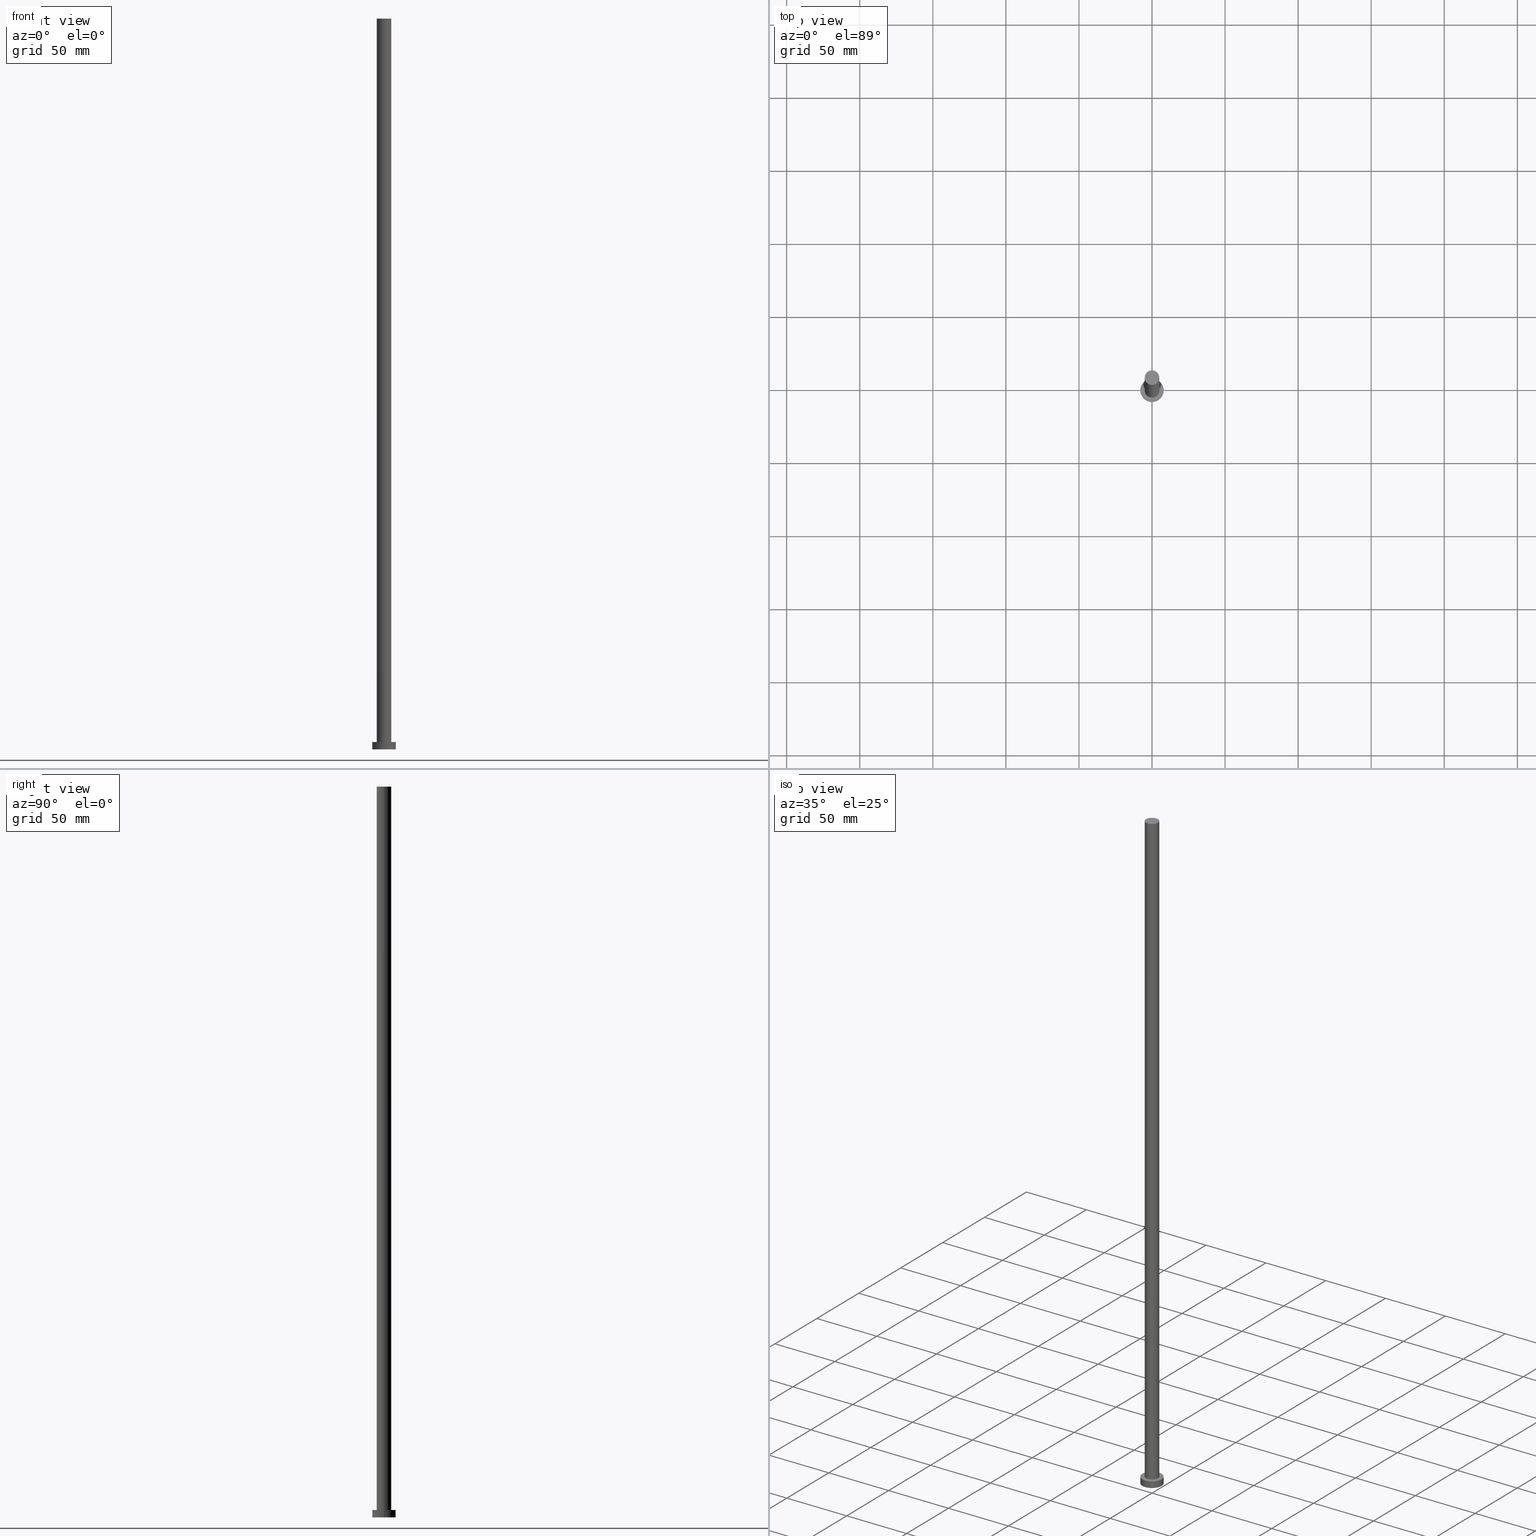
[diagram: canonical four-view strip — front | top / right | iso, engineering-drawing reading convention]
A machine part, canonical four-view strip (front | top / right | iso — engineering-drawing reading convention). The complete STEP part file that produces these views, byte-faithful:
ISO-10303-21;
HEADER;
FILE_DESCRIPTION (( 'STEP AP203' ),
    '1' );
FILE_NAME ('9aa2.STEP',
    '2023-02-12T11:26:42',
    ( '' ),
    ( '' ),
    'SwSTEP 2.0',
    'SolidWorks 2019',
    '' );
FILE_SCHEMA (( 'CONFIG_CONTROL_DESIGN' ));
ENDSEC;

DATA;
#1 = VERTEX_POINT ( 'NONE', #138 ) ;
#2 = PERSON_AND_ORGANIZATION ( #152, #93 ) ;
#3 = DESIGN_CONTEXT ( 'detailed design', #128, 'design' ) ;
#4 = DIRECTION ( 'NONE',  ( 0.000000000000000000, 0.000000000000000000, 1.000000000000000000 ) ) ;
#5 = AXIS2_PLACEMENT_3D ( 'NONE', #100, #115, #183 ) ;
#6 = DIRECTION ( 'NONE',  ( -0.000000000000000000, -0.000000000000000000, -1.000000000000000000 ) ) ;
#7 = VERTEX_POINT ( 'NONE', #133 ) ;
#8 = APPROVAL_DATE_TIME ( #227, #225 ) ;
#9 = EDGE_LOOP ( 'NONE', ( #187, #157, #218, #72 ) ) ;
#10 = EDGE_CURVE ( 'NONE', #7, #165, #21, .T. ) ;
#11 = AXIS2_PLACEMENT_3D ( 'NONE', #226, #50, #101 ) ;
#12 = LINE ( 'NONE', #85, #190 ) ;
#13 = CYLINDRICAL_SURFACE ( 'NONE', #230, 5.000000000000000888 ) ;
#14 = CARTESIAN_POINT ( 'NONE',  ( 5.000000000000000888, 6.123233995736767268E-16, 500.0000000000000000 ) ) ;
#15 = DIRECTION ( 'NONE',  ( -0.000000000000000000, -0.000000000000000000, -1.000000000000000000 ) ) ;
#16 = EDGE_LOOP ( 'NONE', ( #61, #95, #143, #20 ) ) ;
#17 = DIRECTION ( 'NONE',  ( 1.000000000000000000, 0.000000000000000000, -0.000000000000000000 ) ) ;
#18 = APPROVAL_PERSON_ORGANIZATION ( #2, #240, #221 ) ;
#19 = DIRECTION ( 'NONE',  ( -0.000000000000000000, -0.000000000000000000, -1.000000000000000000 ) ) ;
#20 = ORIENTED_EDGE ( 'NONE', *, *, #105, .T. ) ;
#21 = CIRCLE ( 'NONE', #224, 8.000000000000000000 ) ;
#22 = COORDINATED_UNIVERSAL_TIME_OFFSET ( 1, 0, .AHEAD. ) ;
#23 = PRODUCT_DEFINITION_FORMATION_WITH_SPECIFIED_SOURCE ( 'LIBOVOLN�', '', #164, .NOT_KNOWN. ) ;
#24 = DIRECTION ( 'NONE',  ( -0.000000000000000000, -0.000000000000000000, -1.000000000000000000 ) ) ;
#25 = APPROVAL_STATUS ( 'not_yet_approved' ) ;
#26 = DIRECTION ( 'NONE',  ( -1.000000000000000000, 0.000000000000000000, 0.000000000000000000 ) ) ;
#27 = ORIENTED_EDGE ( 'NONE', *, *, #96, .T. ) ;
#28 = PERSON_AND_ORGANIZATION ( #152, #93 ) ;
#29 = CARTESIAN_POINT ( 'NONE',  ( 0.000000000000000000, 0.000000000000000000, 5.000000000000000000 ) ) ;
#30 = LOCAL_TIME ( 12, 26, 42.00000000000000000, #214 ) ;
#31 = DATE_AND_TIME ( #229, #255 ) ;
#32 = PERSON_AND_ORGANIZATION ( #152, #93 ) ;
#33 = DATE_AND_TIME ( #63, #30 ) ;
#34 = APPROVAL_PERSON_ORGANIZATION ( #82, #225, #233 ) ;
#35 = CC_DESIGN_PERSON_AND_ORGANIZATION_ASSIGNMENT ( #54, #189, ( #68 ) ) ;
#36 = CARTESIAN_POINT ( 'NONE',  ( 0.000000000000000000, 0.000000000000000000, 0.000000000000000000 ) ) ;
#37 = ORIENTED_EDGE ( 'NONE', *, *, #175, .T. ) ;
#38 = CARTESIAN_POINT ( 'NONE',  ( 0.000000000000000000, 0.000000000000000000, 5.000000000000000000 ) ) ;
#39 = EDGE_LOOP ( 'NONE', ( #188, #87, #27, #110 ) ) ;
#40 = AXIS2_PLACEMENT_3D ( 'NONE', #234, #69, #17 ) ;
#41 = CARTESIAN_POINT ( 'NONE',  ( 0.000000000000000000, 0.000000000000000000, 5.000000000000000000 ) ) ;
#42 = VECTOR ( 'NONE', #210, 1000.000000000000000 ) ;
#43 = ADVANCED_BREP_SHAPE_REPRESENTATION ( '9aa2', ( #70, #11 ), #119 ) ;
#44 = ADVANCED_FACE ( 'NONE', ( #112 ), #13, .T. ) ;
#45 = PERSON_AND_ORGANIZATION_ROLE ( 'design_owner' ) ;
#46 = VERTEX_POINT ( 'NONE', #14 ) ;
#47 = PERSON_AND_ORGANIZATION_ROLE ( 'creator' ) ;
#48 = ADVANCED_FACE ( 'NONE', ( #205 ), #222, .T. ) ;
#49 = ORIENTED_EDGE ( 'NONE', *, *, #105, .F. ) ;
#50 = DIRECTION ( 'NONE',  ( 0.000000000000000000, 0.000000000000000000, 1.000000000000000000 ) ) ;
#51 = EDGE_LOOP ( 'NONE', ( #163, #243, #125, #238 ) ) ;
#52 = ADVANCED_FACE ( 'NONE', ( #123 ), #223, .T. ) ;
#53 = AXIS2_PLACEMENT_3D ( 'NONE', #160, #60, #141 ) ;
#54 = PERSON_AND_ORGANIZATION ( #152, #93 ) ;
#55 = DATE_TIME_ROLE ( 'creation_date' ) ;
#56 = LOCAL_TIME ( 12, 26, 42.00000000000000000, #22 ) ;
#57 = DIRECTION ( 'NONE',  ( 1.000000000000000000, 0.000000000000000000, -0.000000000000000000 ) ) ;
#58 = DIRECTION ( 'NONE',  ( 0.000000000000000000, 0.000000000000000000, 1.000000000000000000 ) ) ;
#59 = EDGE_CURVE ( 'NONE', #1, #197, #124, .T. ) ;
#60 = DIRECTION ( 'NONE',  ( 0.000000000000000000, 0.000000000000000000, 1.000000000000000000 ) ) ;
#61 = ORIENTED_EDGE ( 'NONE', *, *, #150, .F. ) ;
#62 = CARTESIAN_POINT ( 'NONE',  ( 0.000000000000000000, 0.000000000000000000, 5.000000000000000000 ) ) ;
#63 = CALENDAR_DATE ( 2023, 12, 2 ) ;
#64 = PERSON_AND_ORGANIZATION_ROLE ( 'design_supplier' ) ;
#65 = LOCAL_TIME ( 12, 26, 42.00000000000000000, #75 ) ;
#66 = CARTESIAN_POINT ( 'NONE',  ( -8.000000000000000000, 0.000000000000000000, 5.000000000000000000 ) ) ;
#67 = AXIS2_PLACEMENT_3D ( 'NONE', #191, #58, #151 ) ;
#68 = SECURITY_CLASSIFICATION ( '', '', #231 ) ;
#69 = DIRECTION ( 'NONE',  ( 0.000000000000000000, 0.000000000000000000, 1.000000000000000000 ) ) ;
#70 = MANIFOLD_SOLID_BREP ( 'P�idat vysunut�m3', #248 ) ;
#71 = CARTESIAN_POINT ( 'NONE',  ( 8.000000000000000000, 9.797174393178825657E-16, 0.000000000000000000 ) ) ;
#72 = ORIENTED_EDGE ( 'NONE', *, *, #10, .T. ) ;
#73 = EDGE_CURVE ( 'NONE', #197, #1, #129, .T. ) ;
#74 = CARTESIAN_POINT ( 'NONE',  ( -5.000000000000000888, 0.000000000000000000, 5.000000000000000000 ) ) ;
#75 = COORDINATED_UNIVERSAL_TIME_OFFSET ( 1, 0, .AHEAD. ) ;
#76 = CARTESIAN_POINT ( 'NONE',  ( 5.000000000000000888, 6.123233995736767268E-16, 5.000000000000000000 ) ) ;
#77 = PERSON_AND_ORGANIZATION ( #152, #93 ) ;
#78 = CC_DESIGN_APPROVAL ( #225, ( #68 ) ) ;
#79 = DIRECTION ( 'NONE',  ( -1.000000000000000000, 0.000000000000000000, 0.000000000000000000 ) ) ;
#80 = SHAPE_DEFINITION_REPRESENTATION ( #186, #43 ) ;
#81 = CIRCLE ( 'NONE', #53, 5.000000000000000888 ) ;
#82 = PERSON_AND_ORGANIZATION ( #152, #93 ) ;
#83 = APPLICATION_CONTEXT ( 'configuration controlled 3d designs of mechanical parts and assemblies' ) ;
#84 = ORIENTED_EDGE ( 'NONE', *, *, #202, .F. ) ;
#85 = CARTESIAN_POINT ( 'NONE',  ( -5.000000000000000888, 0.000000000000000000, 500.0000000000000000 ) ) ;
#86 = VECTOR ( 'NONE', #19, 1000.000000000000000 ) ;
#87 = ORIENTED_EDGE ( 'NONE', *, *, #150, .T. ) ;
#88 = CARTESIAN_POINT ( 'NONE',  ( 0.000000000000000000, 0.000000000000000000, 500.0000000000000000 ) ) ;
#89 = VERTEX_POINT ( 'NONE', #76 ) ;
#90 = ADVANCED_FACE ( 'NONE', ( #249 ), #102, .T. ) ;
#91 = CARTESIAN_POINT ( 'NONE',  ( 0.000000000000000000, 0.000000000000000000, 500.0000000000000000 ) ) ;
#92 = CC_DESIGN_PERSON_AND_ORGANIZATION_ASSIGNMENT ( #77, #64, ( #23 ) ) ;
#93 = ORGANIZATION ( 'NEUR�EN�', 'NEUR�EN�', '' ) ;
#94 = CARTESIAN_POINT ( 'NONE',  ( 8.000000000000000000, 9.797174393178825657E-16, 5.000000000000000000 ) ) ;
#95 = ORIENTED_EDGE ( 'NONE', *, *, #235, .F. ) ;
#96 = EDGE_CURVE ( 'NONE', #89, #254, #81, .T. ) ;
#97 =( NAMED_UNIT ( * ) SI_UNIT ( $, .STERADIAN. ) SOLID_ANGLE_UNIT ( ) );
#98 = APPLICATION_PROTOCOL_DEFINITION ( 'international standard', 'config_control_design', 1994, #128 ) ;
#99 = CALENDAR_DATE ( 2023, 12, 2 ) ;
#100 = CARTESIAN_POINT ( 'NONE',  ( 0.000000000000000000, 0.000000000000000000, 5.000000000000000000 ) ) ;
#101 = DIRECTION ( 'NONE',  ( 1.000000000000000000, 0.000000000000000000, 0.000000000000000000 ) ) ;
#102 = CYLINDRICAL_SURFACE ( 'NONE', #149, 8.000000000000000000 ) ;
#103 = EDGE_CURVE ( 'NONE', #1, #7, #107, .T. ) ;
#104 = COORDINATED_UNIVERSAL_TIME_OFFSET ( 1, 0, .AHEAD. ) ;
#105 = EDGE_CURVE ( 'NONE', #254, #89, #185, .T. ) ;
#106 = AXIS2_PLACEMENT_3D ( 'NONE', #88, #236, #216 ) ;
#107 = LINE ( 'NONE', #66, #42 ) ;
#108 = PERSON_AND_ORGANIZATION_ROLE ( 'creator' ) ;
#109 = DIRECTION ( 'NONE',  ( -0.000000000000000000, -0.000000000000000000, -1.000000000000000000 ) ) ;
#110 = ORIENTED_EDGE ( 'NONE', *, *, #232, .F. ) ;
#111 = DIRECTION ( 'NONE',  ( 0.000000000000000000, 0.000000000000000000, 1.000000000000000000 ) ) ;
#112 = FACE_OUTER_BOUND ( 'NONE', #39, .T. ) ;
#113 = AXIS2_PLACEMENT_3D ( 'NONE', #120, #203, #162 ) ;
#114 = CARTESIAN_POINT ( 'NONE',  ( 8.000000000000000000, 9.797174393178825657E-16, 5.000000000000000000 ) ) ;
#115 = DIRECTION ( 'NONE',  ( 0.000000000000000000, 0.000000000000000000, 1.000000000000000000 ) ) ;
#116 = EDGE_LOOP ( 'NONE', ( #167, #156 ) ) ;
#117 =( LENGTH_UNIT ( ) NAMED_UNIT ( * ) SI_UNIT ( .MILLI., .METRE. ) );
#118 = CARTESIAN_POINT ( 'NONE',  ( 0.000000000000000000, 0.000000000000000000, 500.0000000000000000 ) ) ;
#119 =( GEOMETRIC_REPRESENTATION_CONTEXT ( 3 ) GLOBAL_UNCERTAINTY_ASSIGNED_CONTEXT ( ( #136 ) ) GLOBAL_UNIT_ASSIGNED_CONTEXT ( ( #117, #247, #97 ) ) REPRESENTATION_CONTEXT ( 'NONE', 'WORKASPACE' ) );
#120 = CARTESIAN_POINT ( 'NONE',  ( 0.000000000000000000, 0.000000000000000000, 500.0000000000000000 ) ) ;
#121 = EDGE_LOOP ( 'NONE', ( #207, #37 ) ) ;
#122 = PRODUCT_DEFINITION ( 'NEZN�M�', '', #23, #3 ) ;
#123 = FACE_OUTER_BOUND ( 'NONE', #16, .T. ) ;
#124 = CIRCLE ( 'NONE', #5, 8.000000000000000000 ) ;
#125 = ORIENTED_EDGE ( 'NONE', *, *, #202, .T. ) ;
#126 = ADVANCED_FACE ( 'NONE', ( #200, #219 ), #134, .T. ) ;
#127 = COORDINATED_UNIVERSAL_TIME_OFFSET ( 1, 0, .AHEAD. ) ;
#128 = APPLICATION_CONTEXT ( 'configuration controlled 3d designs of mechanical parts and assemblies' ) ;
#129 = CIRCLE ( 'NONE', #180, 8.000000000000000000 ) ;
#130 = PERSON_AND_ORGANIZATION ( #152, #93 ) ;
#131 = DIRECTION ( 'NONE',  ( -1.000000000000000000, 0.000000000000000000, 0.000000000000000000 ) ) ;
#132 = DIRECTION ( 'NONE',  ( 1.000000000000000000, 0.000000000000000000, 0.000000000000000000 ) ) ;
#133 = CARTESIAN_POINT ( 'NONE',  ( -8.000000000000000000, 0.000000000000000000, 0.000000000000000000 ) ) ;
#134 = PLANE ( 'NONE',  #220 ) ;
#135 = AXIS2_PLACEMENT_3D ( 'NONE', #36, #111, #239 ) ;
#136 = UNCERTAINTY_MEASURE_WITH_UNIT (LENGTH_MEASURE( 1.000000000000000082E-05 ), #117, 'distance_accuracy_value', 'NONE');
#137 = FACE_OUTER_BOUND ( 'NONE', #250, .T. ) ;
#138 = CARTESIAN_POINT ( 'NONE',  ( -8.000000000000000000, 0.000000000000000000, 5.000000000000000000 ) ) ;
#139 = DIRECTION ( 'NONE',  ( 1.000000000000000000, 0.000000000000000000, 0.000000000000000000 ) ) ;
#140 = CIRCLE ( 'NONE', #144, 5.000000000000000888 ) ;
#141 = DIRECTION ( 'NONE',  ( 1.000000000000000000, 0.000000000000000000, 0.000000000000000000 ) ) ;
#142 = PERSON_AND_ORGANIZATION ( #152, #93 ) ;
#143 = ORIENTED_EDGE ( 'NONE', *, *, #232, .T. ) ;
#144 = AXIS2_PLACEMENT_3D ( 'NONE', #91, #241, #132 ) ;
#145 = DATE_TIME_ROLE ( 'classification_date' ) ;
#146 = APPROVAL_DATE_TIME ( #31, #181 ) ;
#147 = CC_DESIGN_DATE_AND_TIME_ASSIGNMENT ( #182, #55, ( #122 ) ) ;
#148 = APPROVAL_ROLE ( '' ) ;
#149 = AXIS2_PLACEMENT_3D ( 'NONE', #62, #6, #79 ) ;
#150 = EDGE_CURVE ( 'NONE', #46, #89, #155, .T. ) ;
#151 = DIRECTION ( 'NONE',  ( 1.000000000000000000, 0.000000000000000000, 0.000000000000000000 ) ) ;
#152 = PERSON ( 'NEUR�EN�', 'NEUR�EN�', 'NEUR�EN�', ('NEUR�EN�'), ('NEUR�EN�'), ('NEUR�EN�') ) ;
#153 = DIRECTION ( 'NONE',  ( 0.000000000000000000, 0.000000000000000000, 1.000000000000000000 ) ) ;
#154 = APPROVAL_PERSON_ORGANIZATION ( #32, #181, #148 ) ;
#155 = LINE ( 'NONE', #217, #86 ) ;
#156 = ORIENTED_EDGE ( 'NONE', *, *, #73, .T. ) ;
#157 = ORIENTED_EDGE ( 'NONE', *, *, #59, .F. ) ;
#158 = AXIS2_PLACEMENT_3D ( 'NONE', #118, #24, #26 ) ;
#159 = APPLICATION_PROTOCOL_DEFINITION ( 'international standard', 'config_control_design', 1994, #83 ) ;
#160 = CARTESIAN_POINT ( 'NONE',  ( 0.000000000000000000, 0.000000000000000000, 5.000000000000000000 ) ) ;
#161 = DATE_AND_TIME ( #184, #65 ) ;
#162 = DIRECTION ( 'NONE',  ( 1.000000000000000000, 0.000000000000000000, -0.000000000000000000 ) ) ;
#163 = ORIENTED_EDGE ( 'NONE', *, *, #73, .F. ) ;
#164 = PRODUCT ( '9aa2', '9aa2', '', ( #242 ) ) ;
#165 = VERTEX_POINT ( 'NONE', #71 ) ;
#166 = APPROVAL_STATUS ( 'not_yet_approved' ) ;
#167 = ORIENTED_EDGE ( 'NONE', *, *, #59, .T. ) ;
#168 = CALENDAR_DATE ( 2023, 12, 2 ) ;
#169 = CC_DESIGN_SECURITY_CLASSIFICATION ( #68, ( #23 ) ) ;
#170 = ORIENTED_EDGE ( 'NONE', *, *, #10, .F. ) ;
#171 = ADVANCED_FACE ( 'NONE', ( #173 ), #196, .T. ) ;
#172 = AXIS2_PLACEMENT_3D ( 'NONE', #41, #15, #131 ) ;
#173 = FACE_OUTER_BOUND ( 'NONE', #51, .T. ) ;
#174 = CARTESIAN_POINT ( 'NONE',  ( 0.000000000000000000, 0.000000000000000000, 0.000000000000000000 ) ) ;
#175 = EDGE_CURVE ( 'NONE', #46, #209, #245, .T. ) ;
#176 = LINE ( 'NONE', #94, #194 ) ;
#177 = LOCAL_TIME ( 12, 26, 42.00000000000000000, #104 ) ;
#178 = ORIENTED_EDGE ( 'NONE', *, *, #96, .F. ) ;
#179 = DIRECTION ( 'NONE',  ( 1.000000000000000000, 0.000000000000000000, 0.000000000000000000 ) ) ;
#180 = AXIS2_PLACEMENT_3D ( 'NONE', #29, #4, #179 ) ;
#181 = APPROVAL ( #166, 'NEUR�EN�' ) ;
#182 = DATE_AND_TIME ( #99, #56 ) ;
#183 = DIRECTION ( 'NONE',  ( 1.000000000000000000, 0.000000000000000000, 0.000000000000000000 ) ) ;
#184 = CALENDAR_DATE ( 2023, 12, 2 ) ;
#185 = CIRCLE ( 'NONE', #67, 5.000000000000000888 ) ;
#186 = PRODUCT_DEFINITION_SHAPE ( 'NONE', 'NONE',  #122 ) ;
#187 = ORIENTED_EDGE ( 'NONE', *, *, #192, .F. ) ;
#188 = ORIENTED_EDGE ( 'NONE', *, *, #175, .F. ) ;
#189 = PERSON_AND_ORGANIZATION_ROLE ( 'classification_officer' ) ;
#190 = VECTOR ( 'NONE', #252, 1000.000000000000000 ) ;
#191 = CARTESIAN_POINT ( 'NONE',  ( 0.000000000000000000, 0.000000000000000000, 5.000000000000000000 ) ) ;
#192 = EDGE_CURVE ( 'NONE', #197, #165, #176, .T. ) ;
#193 = CARTESIAN_POINT ( 'NONE',  ( -5.000000000000000888, 0.000000000000000000, 500.0000000000000000 ) ) ;
#194 = VECTOR ( 'NONE', #253, 1000.000000000000000 ) ;
#195 = DIRECTION ( 'NONE',  ( -1.000000000000000000, 0.000000000000000000, 0.000000000000000000 ) ) ;
#196 = CYLINDRICAL_SURFACE ( 'NONE', #172, 8.000000000000000000 ) ;
#197 = VERTEX_POINT ( 'NONE', #114 ) ;
#198 = PLANE ( 'NONE',  #40 ) ;
#199 = CARTESIAN_POINT ( 'NONE',  ( 0.000000000000000000, 0.000000000000000000, 500.0000000000000000 ) ) ;
#200 = FACE_BOUND ( 'NONE', #215, .T. ) ;
#201 = CC_DESIGN_APPROVAL ( #181, ( #23 ) ) ;
#202 = EDGE_CURVE ( 'NONE', #165, #7, #213, .T. ) ;
#203 = DIRECTION ( 'NONE',  ( 0.000000000000000000, 0.000000000000000000, 1.000000000000000000 ) ) ;
#204 = CC_DESIGN_PERSON_AND_ORGANIZATION_ASSIGNMENT ( #28, #45, ( #164 ) ) ;
#205 = FACE_OUTER_BOUND ( 'NONE', #121, .T. ) ;
#206 = ADVANCED_FACE ( 'NONE', ( #137 ), #198, .F. ) ;
#207 = ORIENTED_EDGE ( 'NONE', *, *, #235, .T. ) ;
#208 = CC_DESIGN_DATE_AND_TIME_ASSIGNMENT ( #33, #145, ( #68 ) ) ;
#209 = VERTEX_POINT ( 'NONE', #193 ) ;
#210 = DIRECTION ( 'NONE',  ( -0.000000000000000000, -0.000000000000000000, -1.000000000000000000 ) ) ;
#211 = APPROVAL_STATUS ( 'not_yet_approved' ) ;
#212 = CC_DESIGN_PERSON_AND_ORGANIZATION_ASSIGNMENT ( #130, #108, ( #23 ) ) ;
#213 = CIRCLE ( 'NONE', #135, 8.000000000000000000 ) ;
#214 = COORDINATED_UNIVERSAL_TIME_OFFSET ( 1, 0, .AHEAD. ) ;
#215 = EDGE_LOOP ( 'NONE', ( #49, #178 ) ) ;
#216 = DIRECTION ( 'NONE',  ( 1.000000000000000000, 0.000000000000000000, 0.000000000000000000 ) ) ;
#217 = CARTESIAN_POINT ( 'NONE',  ( 5.000000000000000888, 6.123233995736767268E-16, 500.0000000000000000 ) ) ;
#218 = ORIENTED_EDGE ( 'NONE', *, *, #103, .T. ) ;
#219 = FACE_OUTER_BOUND ( 'NONE', #116, .T. ) ;
#220 = AXIS2_PLACEMENT_3D ( 'NONE', #38, #153, #57 ) ;
#221 = APPROVAL_ROLE ( '' ) ;
#222 = PLANE ( 'NONE',  #113 ) ;
#223 = CYLINDRICAL_SURFACE ( 'NONE', #158, 5.000000000000000888 ) ;
#224 = AXIS2_PLACEMENT_3D ( 'NONE', #174, #237, #139 ) ;
#225 = APPROVAL ( #211, 'NEUR�EN�' ) ;
#226 = CARTESIAN_POINT ( 'NONE',  ( 0.000000000000000000, 0.000000000000000000, 0.000000000000000000 ) ) ;
#227 = DATE_AND_TIME ( #168, #177 ) ;
#228 = PRODUCT_RELATED_PRODUCT_CATEGORY ( 'detail', '', ( #164 ) ) ;
#229 = CALENDAR_DATE ( 2023, 12, 2 ) ;
#230 = AXIS2_PLACEMENT_3D ( 'NONE', #199, #109, #195 ) ;
#231 = SECURITY_CLASSIFICATION_LEVEL ( 'unclassified' ) ;
#232 = EDGE_CURVE ( 'NONE', #209, #254, #12, .T. ) ;
#233 = APPROVAL_ROLE ( '' ) ;
#234 = CARTESIAN_POINT ( 'NONE',  ( 0.000000000000000000, 0.000000000000000000, 0.000000000000000000 ) ) ;
#235 = EDGE_CURVE ( 'NONE', #209, #46, #140, .T. ) ;
#236 = DIRECTION ( 'NONE',  ( 0.000000000000000000, 0.000000000000000000, 1.000000000000000000 ) ) ;
#237 = DIRECTION ( 'NONE',  ( 0.000000000000000000, 0.000000000000000000, 1.000000000000000000 ) ) ;
#238 = ORIENTED_EDGE ( 'NONE', *, *, #103, .F. ) ;
#239 = DIRECTION ( 'NONE',  ( 1.000000000000000000, 0.000000000000000000, 0.000000000000000000 ) ) ;
#240 = APPROVAL ( #25, 'NEUR�EN�' ) ;
#241 = DIRECTION ( 'NONE',  ( 0.000000000000000000, 0.000000000000000000, 1.000000000000000000 ) ) ;
#242 = MECHANICAL_CONTEXT ( 'NONE', #83, 'mechanical' ) ;
#243 = ORIENTED_EDGE ( 'NONE', *, *, #192, .T. ) ;
#244 = CC_DESIGN_PERSON_AND_ORGANIZATION_ASSIGNMENT ( #142, #47, ( #122 ) ) ;
#245 = CIRCLE ( 'NONE', #106, 5.000000000000000888 ) ;
#246 = APPROVAL_DATE_TIME ( #161, #240 ) ;
#247 =( NAMED_UNIT ( * ) PLANE_ANGLE_UNIT ( ) SI_UNIT ( $, .RADIAN. ) );
#248 = CLOSED_SHELL ( 'NONE', ( #44, #171, #90, #126, #206, #52, #48 ) ) ;
#249 = FACE_OUTER_BOUND ( 'NONE', #9, .T. ) ;
#250 = EDGE_LOOP ( 'NONE', ( #170, #84 ) ) ;
#251 = CC_DESIGN_APPROVAL ( #240, ( #122 ) ) ;
#252 = DIRECTION ( 'NONE',  ( -0.000000000000000000, -0.000000000000000000, -1.000000000000000000 ) ) ;
#253 = DIRECTION ( 'NONE',  ( -0.000000000000000000, -0.000000000000000000, -1.000000000000000000 ) ) ;
#254 = VERTEX_POINT ( 'NONE', #74 ) ;
#255 = LOCAL_TIME ( 12, 26, 42.00000000000000000, #127 ) ;
ENDSEC;
END-ISO-10303-21;
